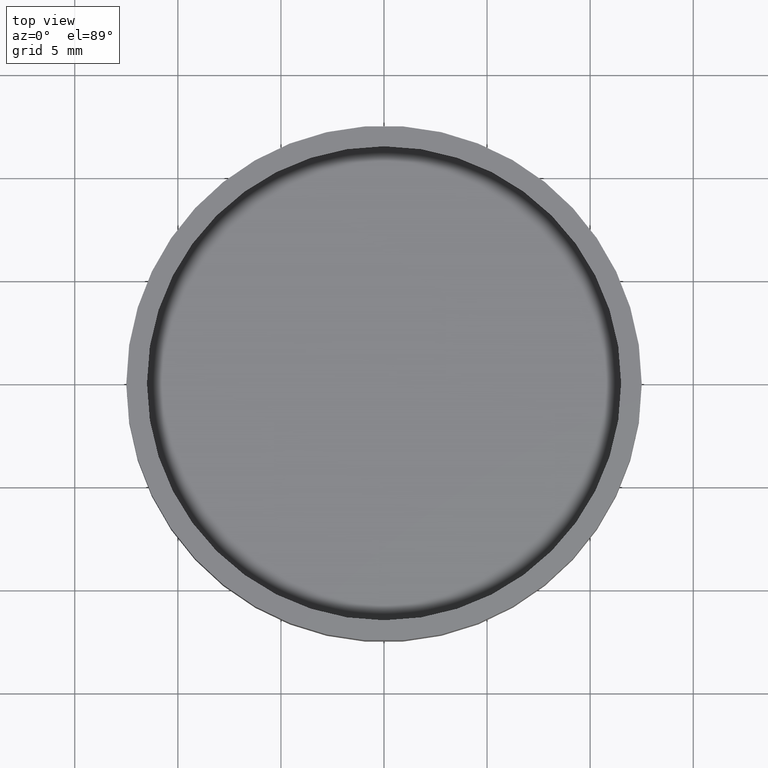
[diagram: clean part render]
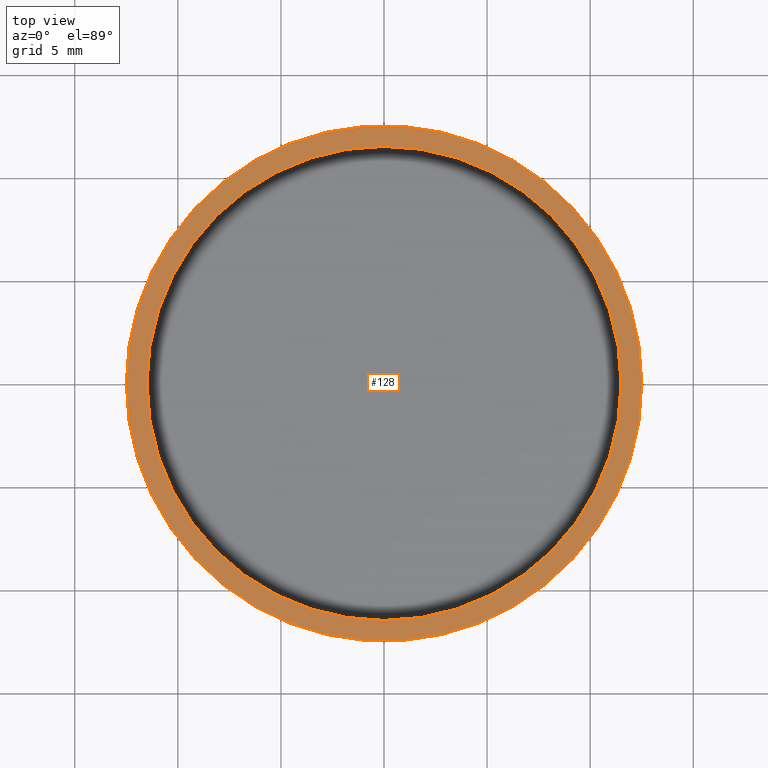
[diagram: same view with one face highlighted and labeled with its STEP entity id]
A machine part, top view. The second image highlights one B-rep face of the part: STEP entity #128.
In plain terms, the highlighted planar face has unit normal (0, 0, 1).
Its self-contained STEP definition (entity closure, byte-faithful):
#27 = VERTEX_POINT ( 'NONE', #208 ) ;
#30 = VERTEX_POINT ( 'NONE', #242 ) ;
#32 = CIRCLE ( 'NONE', #241, 11.50000000000000000 ) ;
#38 = CIRCLE ( 'NONE', #371, 12.50000000000000000 ) ;
#49 = AXIS2_PLACEMENT_3D ( 'NONE', #124, #185, #66 ) ;
#53 = EDGE_LOOP ( 'NONE', ( #257, #253 ) ) ;
#66 = DIRECTION ( 'NONE',  ( 1.000000000000000000, 0.000000000000000000, 0.000000000000000000 ) ) ;
#83 = EDGE_CURVE ( 'NONE', #287, #27, #38, .T. ) ;
#87 = AXIS2_PLACEMENT_3D ( 'NONE', #347, #286, #222 ) ;
#93 = PLANE ( 'NONE',  #87 ) ;
#96 = EDGE_LOOP ( 'NONE', ( #319, #381 ) ) ;
#106 = AXIS2_PLACEMENT_3D ( 'NONE', #183, #224, #193 ) ;
#109 = EDGE_CURVE ( 'NONE', #30, #164, #32, .T. ) ;
#116 = CARTESIAN_POINT ( 'NONE',  ( 0.000000000000000000, 0.000000000000000000, 3.500000000000000000 ) ) ;
#124 = CARTESIAN_POINT ( 'NONE',  ( 0.000000000000000000, 0.000000000000000000, 3.500000000000000000 ) ) ;
#128 = ADVANCED_FACE ( 'NONE', ( #329, #186 ), #93, .T. ) ;
#164 = VERTEX_POINT ( 'NONE', #261 ) ;
#183 = CARTESIAN_POINT ( 'NONE',  ( 0.000000000000000000, 0.000000000000000000, 3.500000000000000000 ) ) ;
#185 = DIRECTION ( 'NONE',  ( 0.000000000000000000, 0.000000000000000000, 1.000000000000000000 ) ) ;
#186 = FACE_OUTER_BOUND ( 'NONE', #53, .T. ) ;
#193 = DIRECTION ( 'NONE',  ( 1.000000000000000000, 0.000000000000000000, 0.000000000000000000 ) ) ;
#208 = CARTESIAN_POINT ( 'NONE',  ( 12.50000000000000000, 1.530808498934191521E-15, 3.500000000000000000 ) ) ;
#222 = DIRECTION ( 'NONE',  ( 1.000000000000000000, 0.000000000000000000, -0.000000000000000000 ) ) ;
#224 = DIRECTION ( 'NONE',  ( 0.000000000000000000, 0.000000000000000000, 1.000000000000000000 ) ) ;
#241 = AXIS2_PLACEMENT_3D ( 'NONE', #116, #380, #373 ) ;
#242 = CARTESIAN_POINT ( 'NONE',  ( 11.50000000000000000, 0.000000000000000000, 3.500000000000000000 ) ) ;
#250 = DIRECTION ( 'NONE',  ( 1.000000000000000000, 0.000000000000000000, 0.000000000000000000 ) ) ;
#253 = ORIENTED_EDGE ( 'NONE', *, *, #394, .T. ) ;
#257 = ORIENTED_EDGE ( 'NONE', *, *, #83, .T. ) ;
#261 = CARTESIAN_POINT ( 'NONE',  ( -11.50000000000000000, 1.408343819019456176E-15, 3.500000000000000000 ) ) ;
#274 = DIRECTION ( 'NONE',  ( 0.000000000000000000, 0.000000000000000000, 1.000000000000000000 ) ) ;
#286 = DIRECTION ( 'NONE',  ( 0.000000000000000000, 0.000000000000000000, 1.000000000000000000 ) ) ;
#287 = VERTEX_POINT ( 'NONE', #372 ) ;
#294 = CIRCLE ( 'NONE', #106, 12.50000000000000000 ) ;
#319 = ORIENTED_EDGE ( 'NONE', *, *, #109, .F. ) ;
#327 = CIRCLE ( 'NONE', #49, 11.50000000000000000 ) ;
#329 = FACE_BOUND ( 'NONE', #96, .T. ) ;
#347 = CARTESIAN_POINT ( 'NONE',  ( 0.000000000000000000, 0.000000000000000000, 3.500000000000000000 ) ) ;
#371 = AXIS2_PLACEMENT_3D ( 'NONE', #404, #274, #250 ) ;
#372 = CARTESIAN_POINT ( 'NONE',  ( -12.50000000000000000, 0.000000000000000000, 3.500000000000000000 ) ) ;
#373 = DIRECTION ( 'NONE',  ( 1.000000000000000000, 0.000000000000000000, 0.000000000000000000 ) ) ;
#376 = EDGE_CURVE ( 'NONE', #164, #30, #327, .T. ) ;
#380 = DIRECTION ( 'NONE',  ( 0.000000000000000000, 0.000000000000000000, 1.000000000000000000 ) ) ;
#381 = ORIENTED_EDGE ( 'NONE', *, *, #376, .F. ) ;
#394 = EDGE_CURVE ( 'NONE', #27, #287, #294, .T. ) ;
#404 = CARTESIAN_POINT ( 'NONE',  ( 0.000000000000000000, 0.000000000000000000, 3.500000000000000000 ) ) ;